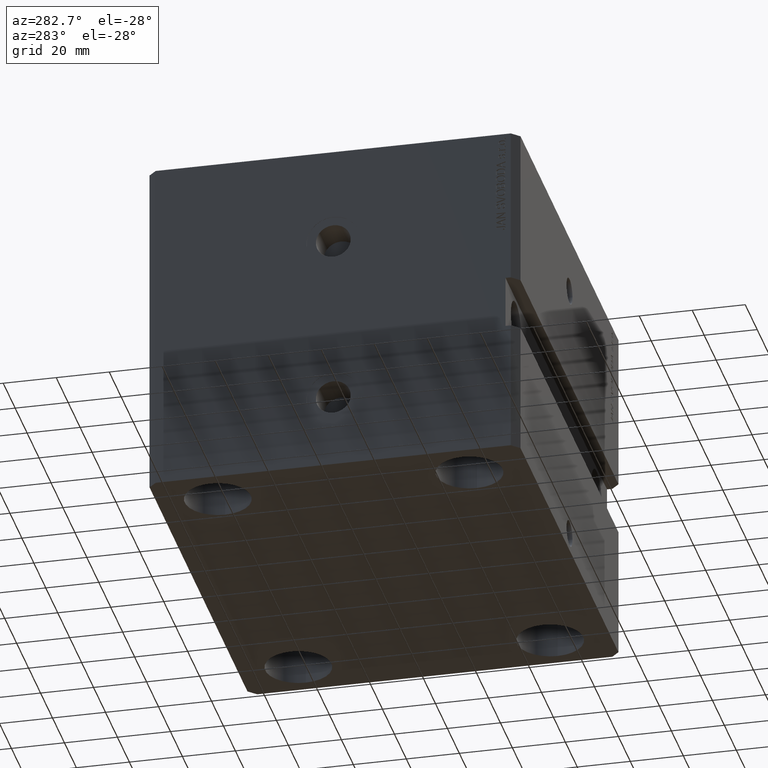
[diagram: clean part render]
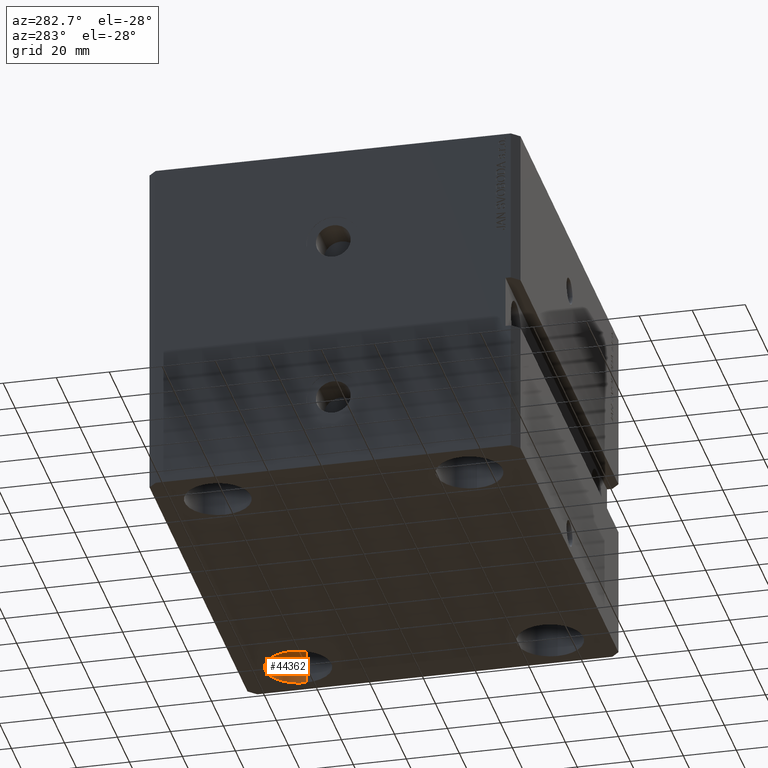
[diagram: same view with one face highlighted and labeled with its STEP entity id]
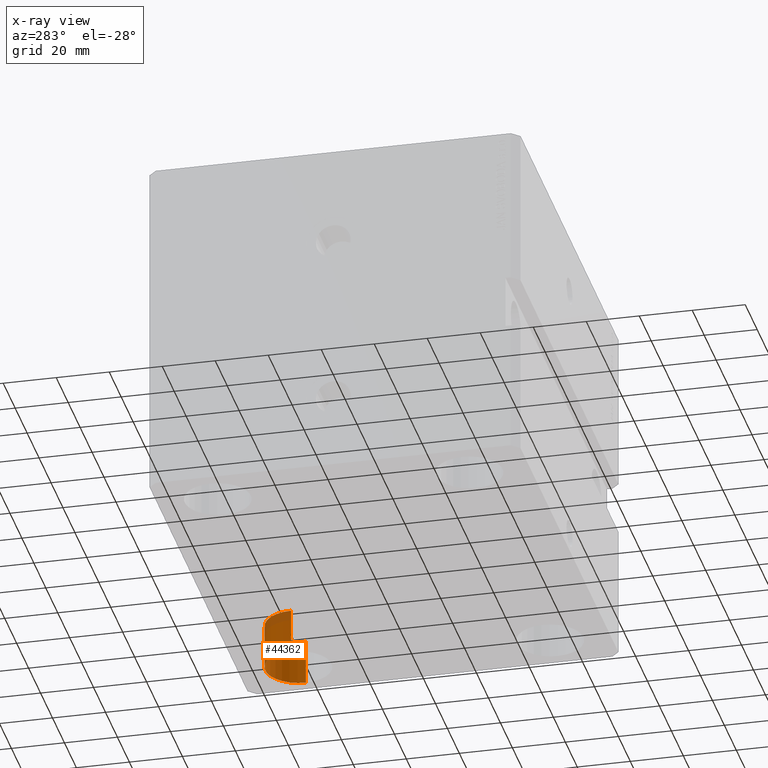
[diagram: x-ray of the same camera — body ghosted, the highlighted face saturated]
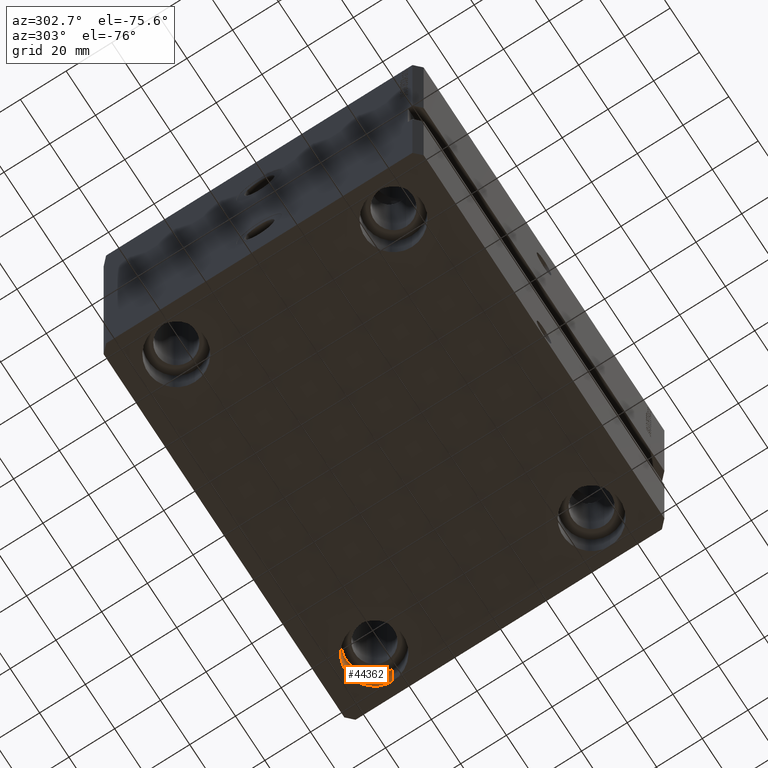
[diagram: same view with one face highlighted and labeled with its STEP entity id]
A machine part, auxiliary view. The second image highlights one B-rep face of the part: STEP entity #44362.
The next image is the same camera in x-ray: the body ghosted, the highlighted face saturated — about 17% of this face is hidden behind the body in this view.
A second angle (auxiliary view) of the same face is appended — the face is thin or edge-on in the first view.
In plain terms, the highlighted cylindrical surface (edge-blend (fillet) strip) has radius 12.5 mm, axis along (-0, -0, -1).
Its self-contained STEP definition (entity closure, byte-faithful):
#300 = ORIENTED_EDGE ( 'NONE', *, *, #20579, .T. ) ;
#351 = VECTOR ( 'NONE', #37674, 1000.000000000000000 ) ;
#640 = AXIS2_PLACEMENT_3D ( 'NONE', #25677, #43676, #36299 ) ;
#4723 = ORIENTED_EDGE ( 'NONE', *, *, #27304, .F. ) ;
#7175 = DIRECTION ( 'NONE',  ( 1.000000000000000000, 0.000000000000000000, 0.000000000000000000 ) ) ;
#10596 = ORIENTED_EDGE ( 'NONE', *, *, #13852, .F. ) ;
#11679 = AXIS2_PLACEMENT_3D ( 'NONE', #32113, #14553, #7175 ) ;
#12914 = DIRECTION ( 'NONE',  ( -0.000000000000000000, -0.000000000000000000, -1.000000000000000000 ) ) ;
#13852 = EDGE_CURVE ( 'NONE', #29723, #38244, #44914, .T. ) ;
#14553 = DIRECTION ( 'NONE',  ( -0.000000000000000000, -0.000000000000000000, 1.000000000000000000 ) ) ;
#14919 = CARTESIAN_POINT ( 'NONE',  ( 80.00000000000000000, 47.50000000000001421, -130.0000000000000000 ) ) ;
#15926 = CARTESIAN_POINT ( 'NONE',  ( 67.50000000000000000, 47.50000000000001421, -113.0000000000000000 ) ) ;
#17935 = DIRECTION ( 'NONE',  ( -0.000000000000000000, -0.000000000000000000, -1.000000000000000000 ) ) ;
#18356 = AXIS2_PLACEMENT_3D ( 'NONE', #15926, #12914, #44352 ) ;
#18691 = CARTESIAN_POINT ( 'NONE',  ( 80.00000000000000000, 47.50000000000001421, -113.0000000000000000 ) ) ;
#20070 = FACE_OUTER_BOUND ( 'NONE', #34539, .T. ) ;
#20579 = EDGE_CURVE ( 'NONE', #42979, #38244, #21177, .T. ) ;
#21177 = LINE ( 'NONE', #45686, #42008 ) ;
#23583 = LINE ( 'NONE', #33751, #351 ) ;
#25677 = CARTESIAN_POINT ( 'NONE',  ( 67.50000000000000000, 47.50000000000001421, -113.0000000000000000 ) ) ;
#27015 = CYLINDRICAL_SURFACE ( 'NONE', #18356, 12.49999999999999645 ) ;
#27304 = EDGE_CURVE ( 'NONE', #34184, #29723, #23583, .T. ) ;
#29723 = VERTEX_POINT ( 'NONE', #14919 ) ;
#32113 = CARTESIAN_POINT ( 'NONE',  ( 67.50000000000000000, 47.50000000000001421, -130.0000000000000000 ) ) ;
#33751 = CARTESIAN_POINT ( 'NONE',  ( 80.00000000000000000, 47.50000000000001421, -113.0000000000000000 ) ) ;
#34184 = VERTEX_POINT ( 'NONE', #18691 ) ;
#34539 = EDGE_LOOP ( 'NONE', ( #4723, #34823, #300, #10596 ) ) ;
#34823 = ORIENTED_EDGE ( 'NONE', *, *, #41858, .T. ) ;
#36299 = DIRECTION ( 'NONE',  ( 1.000000000000000000, 0.000000000000000000, 0.000000000000000000 ) ) ;
#37299 = CARTESIAN_POINT ( 'NONE',  ( 55.00000000000000711, 47.50000000000001421, -113.0000000000000000 ) ) ;
#37674 = DIRECTION ( 'NONE',  ( -0.000000000000000000, -0.000000000000000000, -1.000000000000000000 ) ) ;
#38244 = VERTEX_POINT ( 'NONE', #44818 ) ;
#41858 = EDGE_CURVE ( 'NONE', #34184, #42979, #44177, .T. ) ;
#42008 = VECTOR ( 'NONE', #17935, 1000.000000000000000 ) ;
#42979 = VERTEX_POINT ( 'NONE', #37299 ) ;
#43676 = DIRECTION ( 'NONE',  ( -0.000000000000000000, -0.000000000000000000, 1.000000000000000000 ) ) ;
#44177 = CIRCLE ( 'NONE', #640, 12.49999999999999645 ) ;
#44352 = DIRECTION ( 'NONE',  ( -1.000000000000000000, 0.000000000000000000, 0.000000000000000000 ) ) ;
#44362 = ADVANCED_FACE ( 'NONE', ( #20070 ), #27015, .F. ) ;
#44818 = CARTESIAN_POINT ( 'NONE',  ( 55.00000000000000711, 47.50000000000001421, -130.0000000000000000 ) ) ;
#44914 = CIRCLE ( 'NONE', #11679, 12.49999999999999645 ) ;
#45686 = CARTESIAN_POINT ( 'NONE',  ( 55.00000000000000711, 47.50000000000001421, -113.0000000000000000 ) ) ;